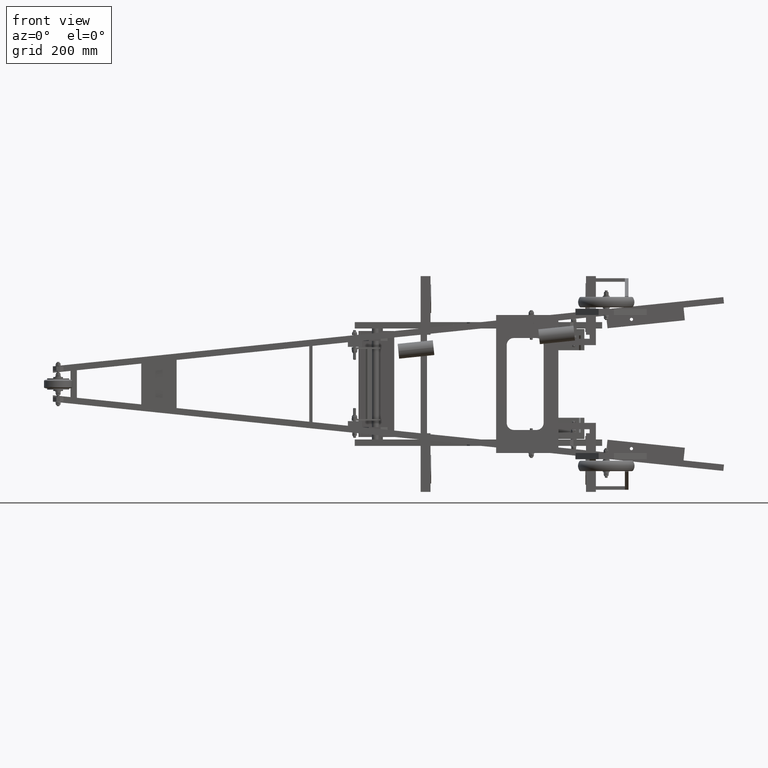
[diagram: clean part render]
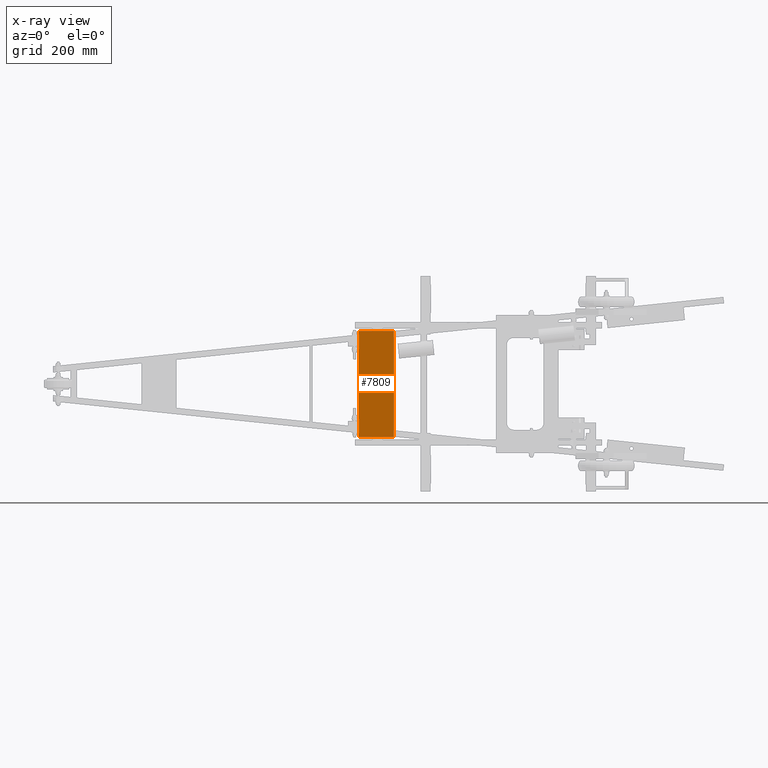
[diagram: x-ray — body ghosted, one internal face saturated and labeled with its STEP entity id]
A machine part, front view, then the same camera in x-ray: the body is ghosted and one INTERNAL B-rep face — a face not visible from any outside direction — is saturated and labeled: STEP entity #7809.
In plain terms, the highlighted planar face has unit normal (-0.1098, -0.9939, -0).
Its self-contained STEP definition (entity closure, byte-faithful):
#222 = ORIENTED_EDGE ( 'NONE', *, *, #1621, .F. ) ;
#223 = ORIENTED_EDGE ( 'NONE', *, *, #1635, .F. ) ;
#224 = ORIENTED_EDGE ( 'NONE', *, *, #1632, .F. ) ;
#225 = ORIENTED_EDGE ( 'NONE', *, *, #1629, .F. ) ;
#1621 = EDGE_CURVE ( 'NONE', #7518, #7519, #11021, .T. ) ;
#1629 = EDGE_CURVE ( 'NONE', #7519, #7522, #11020, .T. ) ;
#1632 = EDGE_CURVE ( 'NONE', #7522, #7524, #11038, .T. ) ;
#1635 = EDGE_CURVE ( 'NONE', #7524, #7518, #11043, .T. ) ;
#6295 = CARTESIAN_POINT ( 'NONE',  ( 0.0000000000000000000, 0.0000000000000000000, 0.0000000000000000000 ) ) ;
#6296 = DIRECTION ( 'NONE',  ( -0.0000000000000000000, -0.0000000000000000000, 1.000000000000000000 ) ) ;
#6303 = CARTESIAN_POINT ( 'NONE',  ( 0.0000000000000000000, 0.0000000000000000000, 0.0000000000000000000 ) ) ;
#6313 = DIRECTION ( 'NONE',  ( 1.000000000000000000, 0.0000000000000000000, 0.0000000000000000000 ) ) ;
#6316 = CARTESIAN_POINT ( 'NONE',  ( 300.0000000000000000, 0.0000000000000000000, 0.0000000000000000000 ) ) ;
#6320 = DIRECTION ( 'NONE',  ( 0.0000000000000000000, 0.0000000000000000000, -1.000000000000000000 ) ) ;
#6323 = CARTESIAN_POINT ( 'NONE',  ( 0.0000000000000000000, 0.0000000000000000000, -100.0000000000000000 ) ) ;
#6326 = DIRECTION ( 'NONE',  ( -1.000000000000000000, -0.0000000000000000000, -0.0000000000000000000 ) ) ;
#7518 = VERTEX_POINT ( 'NONE', #24577 ) ;
#7519 = VERTEX_POINT ( 'NONE', #24578 ) ;
#7522 = VERTEX_POINT ( 'NONE', #24581 ) ;
#7524 = VERTEX_POINT ( 'NONE', #24583 ) ;
#7809 = ADVANCED_FACE ( 'NONE', ( #25482 ), #26553, .T. ) ;
#8843 = EDGE_LOOP ( 'NONE', ( #222, #223, #224, #225 ) ) ;
#11020 = LINE ( 'NONE', #6303, #11037 ) ;
#11021 = LINE ( 'NONE', #6295, #11022 ) ;
#11022 = VECTOR ( 'NONE', #6296, 1000.000000000000000 ) ;
#11037 = VECTOR ( 'NONE', #6313, 1000.000000000000000 ) ;
#11038 = LINE ( 'NONE', #6316, #11042 ) ;
#11042 = VECTOR ( 'NONE', #6320, 1000.000000000000000 ) ;
#11043 = LINE ( 'NONE', #6323, #11047 ) ;
#11047 = VECTOR ( 'NONE', #6326, 1000.000000000000000 ) ;
#24577 = CARTESIAN_POINT ( 'NONE',  ( 0.0000000000000000000, 0.0000000000000000000, -100.0000000000000000 ) ) ;
#24578 = CARTESIAN_POINT ( 'NONE',  ( 0.0000000000000000000, 0.0000000000000000000, 0.0000000000000000000 ) ) ;
#24581 = CARTESIAN_POINT ( 'NONE',  ( 300.0000000000000000, 0.0000000000000000000, 0.0000000000000000000 ) ) ;
#24583 = CARTESIAN_POINT ( 'NONE',  ( 300.0000000000000000, 0.0000000000000000000, -100.0000000000000000 ) ) ;
#25482 = FACE_OUTER_BOUND ( 'NONE', #8843, .T. ) ;
#25994 = AXIS2_PLACEMENT_3D ( 'NONE', #26548, #26558, #26559 ) ;
#26548 = CARTESIAN_POINT ( 'NONE',  ( 0.0000000000000000000, 0.0000000000000000000, -100.0000000000000000 ) ) ;
#26553 = PLANE ( 'NONE',  #25994 ) ;
#26558 = DIRECTION ( 'NONE',  ( 0.0000000000000000000, -1.000000000000000000, 0.0000000000000000000 ) ) ;
#26559 = DIRECTION ( 'NONE',  ( 0.0000000000000000000, -0.0000000000000000000, -1.000000000000000000 ) ) ;